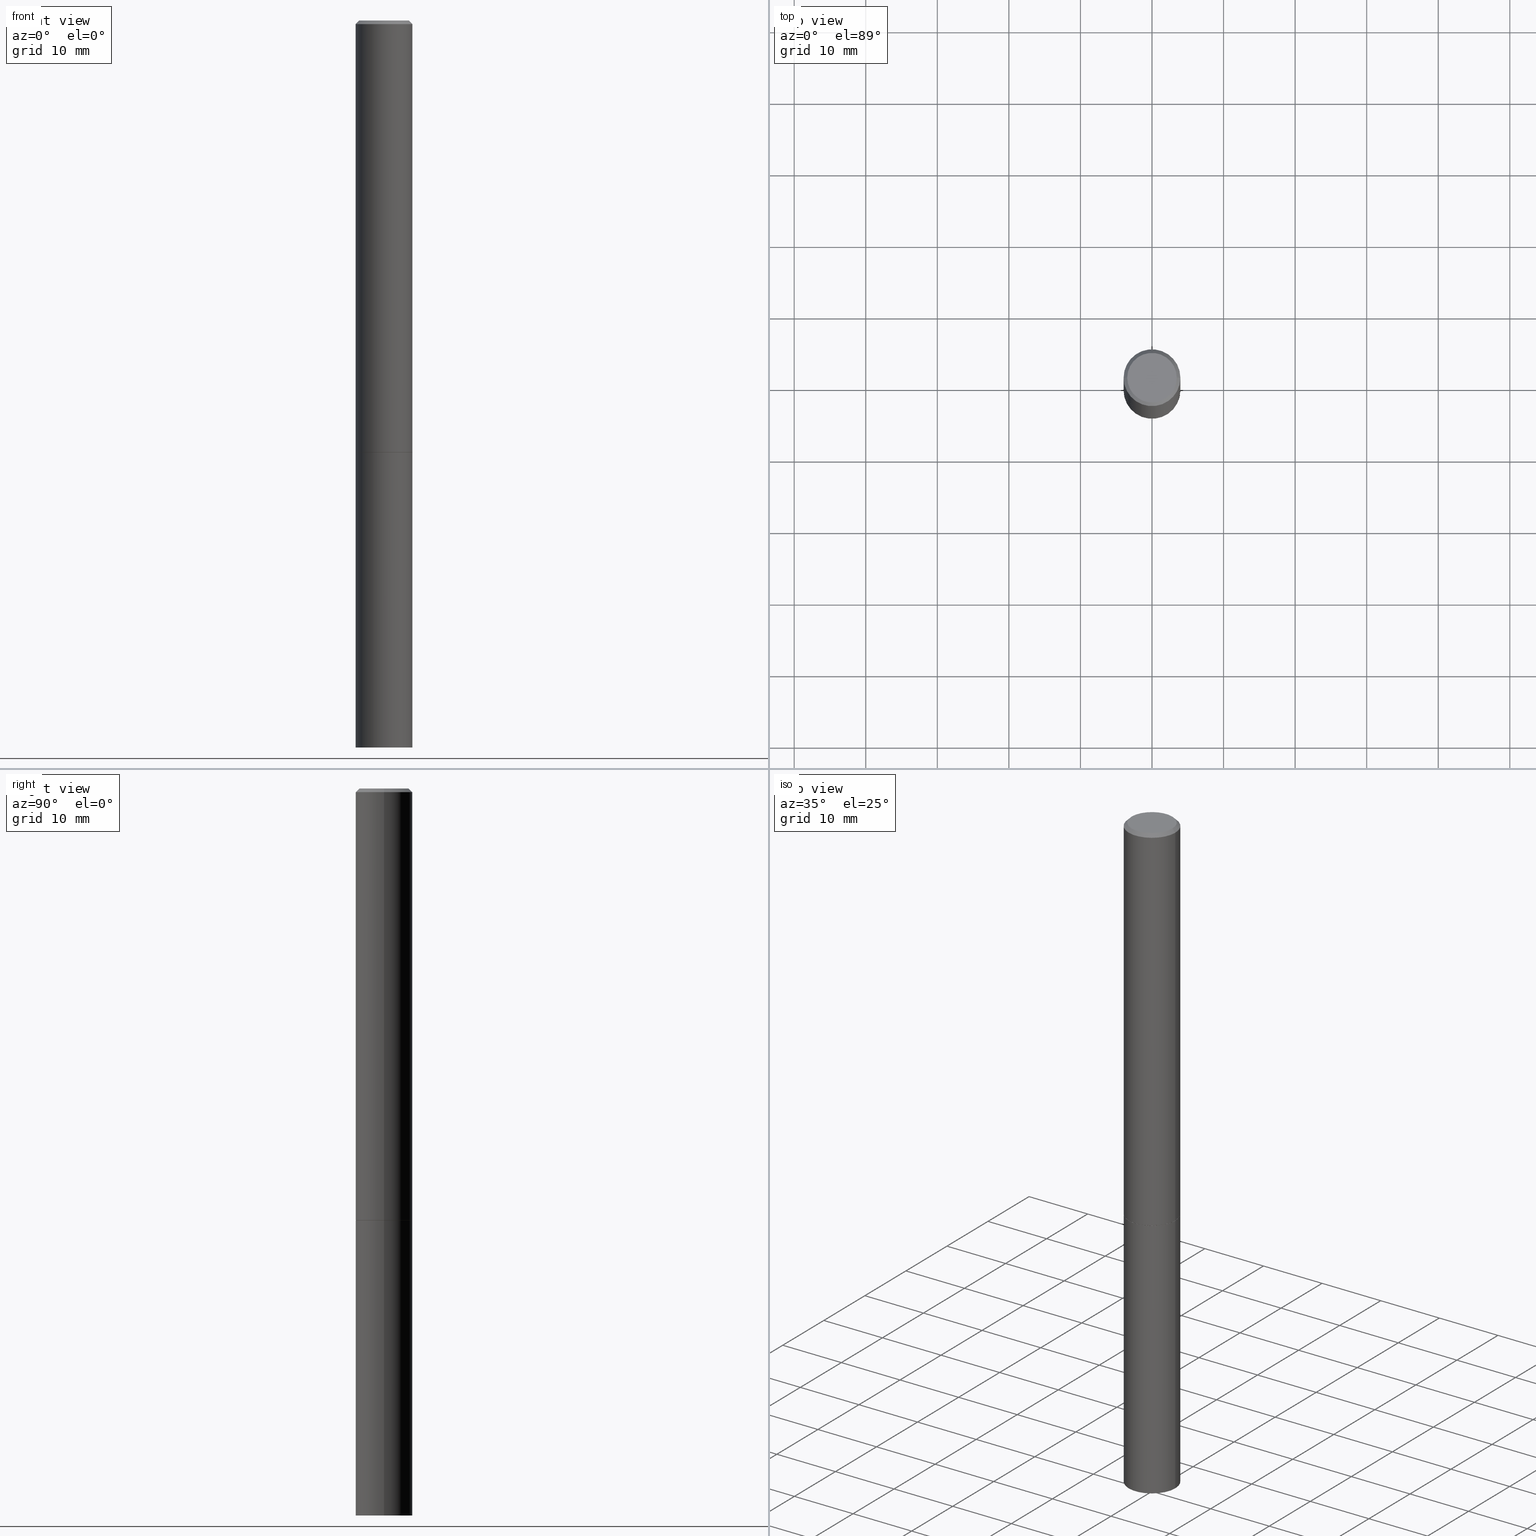
[diagram: canonical four-view strip — front | top / right | iso, engineering-drawing reading convention]
A machine part, canonical four-view strip (front | top / right | iso — engineering-drawing reading convention). The complete STEP part file that produces these views, byte-faithful:
ISO-10303-21;
HEADER;
FILE_DESCRIPTION (( 'STEP AP203' ),
    '1' );
FILE_NAME ('31863.STEP',
    '2023-03-21T20:31:59',
    ( '' ),
    ( '' ),
    'SwSTEP 2.0',
    'SolidWorks 2022',
    '' );
FILE_SCHEMA (( 'CONFIG_CONTROL_DESIGN' ));
ENDSEC;

DATA;
#1 = DIRECTION ( 'NONE',  ( 1.000000000000000000, -6.982962677686267499E-15, 0.000000000000000000 ) ) ;
#2 = DIRECTION ( 'NONE',  ( -1.000000000000000000, 6.982962677686265922E-15, -4.876176775795935793E-29 ) ) ;
#3 = EDGE_LOOP ( 'NONE', ( #351, #296 ) ) ;
#4 = DIRECTION ( 'NONE',  ( 1.000000000000000000, -6.982962677686266711E-15, 4.876176775795936353E-29 ) ) ;
#5 = PLANE ( 'NONE',  #330 ) ;
#6 = DIRECTION ( 'NONE',  ( -2.445468806185136597E-29, 3.491481338843145583E-15, 1.000000000000000000 ) ) ;
#7 = EDGE_LOOP ( 'NONE', ( #229, #310, #166, #265 ) ) ;
#8 = EDGE_CURVE ( 'NONE', #151, #136, #236, .T. ) ;
#9 = DIRECTION ( 'NONE',  ( -2.445468806185136597E-29, 3.491481338843145583E-15, 1.000000000000000000 ) ) ;
#10 = CARTESIAN_POINT ( 'NONE',  ( -0.1562500000000000000, 1.110223024625156540E-15, -7.685836078523291160E-30 ) ) ;
#11 = ORIENTED_EDGE ( 'NONE', *, *, #362, .T. ) ;
#12 = DIRECTION ( 'NONE',  ( 1.000000000000000000, -6.982962677686267499E-15, 0.000000000000000000 ) ) ;
#13 = COORDINATED_UNIVERSAL_TIME_OFFSET ( 5, 0, .BEHIND. ) ;
#14 = CARTESIAN_POINT ( 'NONE',  ( -0.1562500000000000000, -3.069080137970085114E-15, -2.373999999999999666 ) ) ;
#15 = CC_DESIGN_DATE_AND_TIME_ASSIGNMENT ( #321, #199, ( #30 ) ) ;
#16 = EDGE_CURVE ( 'NONE', #86, #286, #88, .T. ) ;
#17 = PERSON_AND_ORGANIZATION ( #21, #123 ) ;
#18 = VECTOR ( 'NONE', #389, 39.37007874015748143 ) ;
#19 = ORIENTED_EDGE ( 'NONE', *, *, #105, .F. ) ;
#20 = APPROVAL_PERSON_ORGANIZATION ( #232, #272, #49 ) ;
#21 = PERSON ( 'UNSPECIFIED', 'UNSPECIFIED', 'UNSPECIFIED', ('UNSPECIFIED'), ('UNSPECIFIED'), ('UNSPECIFIED') ) ;
#22 = CALENDAR_DATE ( 2023, 21, 3 ) ;
#23 = EDGE_LOOP ( 'NONE', ( #196, #295, #176, #19 ) ) ;
#24 = ADVANCED_FACE ( 'NONE', ( #383 ), #213, .T. ) ;
#25 = CARTESIAN_POINT ( 'NONE',  ( 5.807988414689699417E-29, -8.292268179752470118E-15, -2.375000000000000000 ) ) ;
#26 = CALENDAR_DATE ( 2023, 21, 3 ) ;
#27 = ADVANCED_FACE ( 'NONE', ( #200 ), #233, .T. ) ;
#28 = DIRECTION ( 'NONE',  ( -1.000000000000000000, 6.982962677686266711E-15, 0.000000000000000000 ) ) ;
#29 = PLANE ( 'NONE',  #42 ) ;
#30 = PRODUCT_DEFINITION ( 'UNKNOWN', '', #246, #187 ) ;
#31 = FACE_OUTER_BOUND ( 'NONE', #361, .T. ) ;
#32 = DIRECTION ( 'NONE',  ( 2.438088387897960049E-29, -3.491481338843145188E-15, -1.000000000000000000 ) ) ;
#33 = CARTESIAN_POINT ( 'NONE',  ( 0.000000000000000000, 0.000000000000000000, 0.000000000000000000 ) ) ;
#34 = APPROVAL ( #143, 'UNSPECIFIED' ) ;
#35 = CARTESIAN_POINT ( 'NONE',  ( 5.807988414689699417E-29, -8.292268179752470118E-15, -2.375000000000000000 ) ) ;
#36 = CARTESIAN_POINT ( 'NONE',  ( 0.000000000000000000, 0.000000000000000000, 0.000000000000000000 ) ) ;
#37 = DIRECTION ( 'NONE',  ( -2.445468806185136597E-29, 3.491481338843145583E-15, 1.000000000000000000 ) ) ;
#38 = EDGE_CURVE ( 'NONE', #286, #86, #149, .T. ) ;
#39 = DIRECTION ( 'NONE',  ( 1.000000000000000000, -6.982962677686268288E-15, 0.000000000000000000 ) ) ;
#40 = VERTEX_POINT ( 'NONE', #58 ) ;
#41 = DIRECTION ( 'NONE',  ( -0.7071067811865232589, 7.493145998870265808E-15, 0.7071067811865715536 ) ) ;
#42 = AXIS2_PLACEMENT_3D ( 'NONE', #371, #152, #2 ) ;
#43 = AXIS2_PLACEMENT_3D ( 'NONE', #376, #165, #340 ) ;
#44 = FACE_OUTER_BOUND ( 'NONE', #23, .T. ) ;
#45 = PERSON_AND_ORGANIZATION_ROLE ( 'design_supplier' ) ;
#46 = CC_DESIGN_PERSON_AND_ORGANIZATION_ASSIGNMENT ( #54, #360, ( #246 ) ) ;
#47 = APPROVAL_DATE_TIME ( #84, #272 ) ;
#48 = ORIENTED_EDGE ( 'NONE', *, *, #277, .F. ) ;
#49 = APPROVAL_ROLE ( '' ) ;
#50 = CONICAL_SURFACE ( 'NONE', #274, 0.1562499999999996947, 0.7853981633974472798 ) ;
#51 = ORIENTED_EDGE ( 'NONE', *, *, #339, .T. ) ;
#52 = CIRCLE ( 'NONE', #304, 0.1562500000000000000 ) ;
#53 = APPROVAL ( #117, 'UNSPECIFIED' ) ;
#54 = PERSON_AND_ORGANIZATION ( #21, #123 ) ;
#55 = DIRECTION ( 'NONE',  ( -2.445468806185136597E-29, 3.491481338843145583E-15, 1.000000000000000000 ) ) ;
#56 = MECHANICAL_CONTEXT ( 'NONE', #119, 'mechanical' ) ;
#57 = ORIENTED_EDGE ( 'NONE', *, *, #8, .F. ) ;
#58 = CARTESIAN_POINT ( 'NONE',  ( 0.1562499999999996947, -1.141782438928662738E-15, -0.02000000000000003511 ) ) ;
#59 = VECTOR ( 'NONE', #302, 39.37007874015748143 ) ;
#60 = LOCAL_TIME ( 16, 31, 59.00000000000000000, #326 ) ;
#61 = PLANE ( 'NONE',  #197 ) ;
#62 = CARTESIAN_POINT ( 'NONE',  ( -1.520718032702598026E-18, -1.393733460796993625E-14, -3.991811284487025713 ) ) ;
#63 = DIRECTION ( 'NONE',  ( 1.000000000000000000, -6.982962677686262766E-15, 0.000000000000000000 ) ) ;
#64 = AXIS2_PLACEMENT_3D ( 'NONE', #237, #144, #263 ) ;
#65 = CIRCLE ( 'NONE', #83, 0.1362499999999997047 ) ;
#66 = ADVANCED_FACE ( 'NONE', ( #208 ), #280, .F. ) ;
#67 = FACE_OUTER_BOUND ( 'NONE', #3, .T. ) ;
#68 = DIRECTION ( 'NONE',  ( 1.000000000000000000, -6.982962677686266711E-15, 4.876176775795936353E-29 ) ) ;
#69 = VECTOR ( 'NONE', #366, 39.37007874015748854 ) ;
#70 = CARTESIAN_POINT ( 'NONE',  ( -0.1562499999999997224, -1.287483743698410395E-14, -4.000000000000000000 ) ) ;
#71 = DIMENSIONAL_EXPONENTS ( 1.000000000000000000, 0.000000000000000000, 0.000000000000000000, 0.000000000000000000, 0.000000000000000000, 0.000000000000000000, 0.000000000000000000 ) ;
#72 = DIRECTION ( 'NONE',  ( 1.000000000000000000, -6.982962677686266711E-15, 4.876176775795936353E-29 ) ) ;
#73 = ORIENTED_EDGE ( 'NONE', *, *, #390, .T. ) ;
#74 =( GEOMETRIC_REPRESENTATION_CONTEXT ( 3 ) GLOBAL_UNCERTAINTY_ASSIGNED_CONTEXT ( ( #264 ) ) GLOBAL_UNIT_ASSIGNED_CONTEXT ( ( #132, #345, #342 ) ) REPRESENTATION_CONTEXT ( 'NONE', 'WORKASPACE' ) );
#75 = PERSON_AND_ORGANIZATION_ROLE ( 'design_owner' ) ;
#76 = ORIENTED_EDGE ( 'NONE', *, *, #154, .T. ) ;
#77 = APPROVAL_ROLE ( '' ) ;
#78 = ORIENTED_EDGE ( 'NONE', *, *, #16, .T. ) ;
#79 = ORIENTED_EDGE ( 'NONE', *, *, #38, .F. ) ;
#80 = PERSON_AND_ORGANIZATION ( #21, #123 ) ;
#81 = AXIS2_PLACEMENT_3D ( 'NONE', #357, #55, #262 ) ;
#82 = DIRECTION ( 'NONE',  ( -2.445468806185136597E-29, 3.491481338843145583E-15, 1.000000000000000000 ) ) ;
#83 = AXIS2_PLACEMENT_3D ( 'NONE', #36, #9, #68 ) ;
#84 = DATE_AND_TIME ( #115, #267 ) ;
#85 = DIRECTION ( 'NONE',  ( -2.445468806185136877E-29, 3.491481338843145188E-15, 1.000000000000000000 ) ) ;
#86 = VERTEX_POINT ( 'NONE', #14 ) ;
#87 = DIRECTION ( 'NONE',  ( 2.445468806185136597E-29, -3.491481338843145583E-15, -1.000000000000000000 ) ) ;
#88 = CIRCLE ( 'NONE', #64, 0.1562500000000000000 ) ;
#89 = CC_DESIGN_SECURITY_CLASSIFICATION ( #150, ( #246 ) ) ;
#90 = CARTESIAN_POINT ( 'NONE',  ( 5.807988414689699417E-29, -8.292268179752470118E-15, -2.375000000000000000 ) ) ;
#91 = LINE ( 'NONE', #211, #18 ) ;
#92 = EDGE_CURVE ( 'NONE', #269, #377, #354, .T. ) ;
#93 = CARTESIAN_POINT ( 'NONE',  ( 0.1552499999999999991, -9.376373135463264066E-15, -2.375000000000000000 ) ) ;
#94 = ADVANCED_FACE ( 'NONE', ( #31 ), #270, .T. ) ;
#95 = AXIS2_PLACEMENT_3D ( 'NONE', #278, #273, #1 ) ;
#96 = CIRCLE ( 'NONE', #129, 0.1362499999999997047 ) ;
#97 = FACE_OUTER_BOUND ( 'NONE', #7, .T. ) ;
#98 = ADVANCED_FACE ( 'NONE', ( #128 ), #358, .F. ) ;
#99 = DIRECTION ( 'NONE',  ( 1.000000000000000000, -6.982962677686262766E-15, 0.000000000000000000 ) ) ;
#100 = CARTESIAN_POINT ( 'NONE',  ( -0.1552499999999999991, -7.189150582484915374E-15, -2.375000000000000000 ) ) ;
#101 = VERTEX_POINT ( 'NONE', #300 ) ;
#102 = VECTOR ( 'NONE', #85, 39.37007874015748143 ) ;
#103 = LINE ( 'NONE', #347, #252 ) ;
#104 = CARTESIAN_POINT ( 'NONE',  ( 0.000000000000000000, 0.000000000000000000, 0.000000000000000000 ) ) ;
#105 = EDGE_CURVE ( 'NONE', #286, #40, #91, .T. ) ;
#106 = APPLICATION_CONTEXT ( 'configuration controlled 3d designs of mechanical parts and assemblies' ) ;
#107 = CARTESIAN_POINT ( 'NONE',  ( 0.000000000000000000, 0.000000000000000000, 0.000000000000000000 ) ) ;
#108 = ORIENTED_EDGE ( 'NONE', *, *, #362, .F. ) ;
#109 = DIRECTION ( 'NONE',  ( 1.000000000000000000, 0.000000000000000000, 0.000000000000000000 ) ) ;
#110 = VERTEX_POINT ( 'NONE', #186 ) ;
#111 = ADVANCED_FACE ( 'NONE', ( #279 ), #29, .F. ) ;
#112 = APPROVAL_DATE_TIME ( #261, #53 ) ;
#113 = DIRECTION ( 'NONE',  ( -2.445468806185136597E-29, 3.491481338843145583E-15, 1.000000000000000000 ) ) ;
#114 = ORIENTED_EDGE ( 'NONE', *, *, #390, .F. ) ;
#115 = CALENDAR_DATE ( 2023, 21, 3 ) ;
#116 = ORIENTED_EDGE ( 'NONE', *, *, #277, .T. ) ;
#117 = APPROVAL_STATUS ( 'not_yet_approved' ) ;
#118 = ORIENTED_EDGE ( 'NONE', *, *, #294, .F. ) ;
#119 = APPLICATION_CONTEXT ( 'configuration controlled 3d designs of mechanical parts and assemblies' ) ;
#120 = LINE ( 'NONE', #276, #266 ) ;
#121 = DIRECTION ( 'NONE',  ( -2.445468806185136597E-29, 3.491481338843145583E-15, 1.000000000000000000 ) ) ;
#122 = AXIS2_PLACEMENT_3D ( 'NONE', #368, #338, #337 ) ;
#123 = ORGANIZATION ( 'UNSPECIFIED', 'UNSPECIFIED', '' ) ;
#124 = EDGE_CURVE ( 'NONE', #101, #40, #185, .T. ) ;
#125 = DIRECTION ( 'NONE',  ( -0.7071067811865467956, 2.468850131082249172E-15, -0.7071067811865482389 ) ) ;
#126 = CARTESIAN_POINT ( 'NONE',  ( 9.781875224740546387E-29, -1.396592535537258233E-14, -4.000000000000000000 ) ) ;
#127 = MANIFOLD_SOLID_BREP ( 'Body-Move/Copy2[2]', #227 ) ;
#128 = FACE_OUTER_BOUND ( 'NONE', #382, .T. ) ;
#129 = AXIS2_PLACEMENT_3D ( 'NONE', #104, #37, #72 ) ;
#130 = CARTESIAN_POINT ( 'NONE',  ( 5.807988414689699417E-29, -8.292268179752470118E-15, -2.375000000000000000 ) ) ;
#131 = MANIFOLD_SOLID_BREP ( 'Body-Move/Copy2[1]', #234 ) ;
#132 =( CONVERSION_BASED_UNIT ( 'INCH', #372 ) LENGTH_UNIT ( ) NAMED_UNIT ( #71 ) );
#133 = AXIS2_PLACEMENT_3D ( 'NONE', #33, #121, #332 ) ;
#134 = CARTESIAN_POINT ( 'NONE',  ( -0.1562500000000000000, -1.001887374293736968E-14, -2.375000000000000000 ) ) ;
#135 = ADVANCED_FACE ( 'NONE', ( #153 ), #61, .F. ) ;
#136 = VERTEX_POINT ( 'NONE', #183 ) ;
#137 = CARTESIAN_POINT ( 'NONE',  ( 0.1562500000000000000, -9.379864616802105495E-15, -2.373999999999999666 ) ) ;
#138 = ORIENTED_EDGE ( 'NONE', *, *, #167, .T. ) ;
#139 = EDGE_LOOP ( 'NONE', ( #224, #180, #114, #57 ) ) ;
#140 = CONICAL_SURFACE ( 'NONE', #203, 0.1552499999999999991, 0.7853981633974141952 ) ;
#141 = CALENDAR_DATE ( 2023, 21, 3 ) ;
#142 = ORIENTED_EDGE ( 'NONE', *, *, #294, .T. ) ;
#143 = APPROVAL_STATUS ( 'not_yet_approved' ) ;
#144 = DIRECTION ( 'NONE',  ( -2.445468806185136597E-29, 3.491481338843145583E-15, 1.000000000000000000 ) ) ;
#145 = ADVANCED_BREP_SHAPE_REPRESENTATION ( '31863', ( #131, #127, #221 ), #74 ) ;
#146 = DIRECTION ( 'NONE',  ( 0.000000000000000000, 0.000000000000000000, 1.000000000000000000 ) ) ;
#147 = EDGE_LOOP ( 'NONE', ( #255, #356, #315, #48 ) ) ;
#148 = DATE_TIME_ROLE ( 'classification_date' ) ;
#149 = CIRCLE ( 'NONE', #341, 0.1562500000000000000 ) ;
#150 = SECURITY_CLASSIFICATION ( '', '', #291 ) ;
#151 = VERTEX_POINT ( 'NONE', #216 ) ;
#152 = DIRECTION ( 'NONE',  ( 2.438088387897960049E-29, -3.491481338843145188E-15, -1.000000000000000000 ) ) ;
#153 = FACE_OUTER_BOUND ( 'NONE', #292, .T. ) ;
#154 = EDGE_CURVE ( 'NONE', #202, #329, #120, .T. ) ;
#155 = CARTESIAN_POINT ( 'NONE',  ( 9.514286648347515911E-16, 0.1362499999999997047, -4.757143324173775705E-16 ) ) ;
#156 = CARTESIAN_POINT ( 'NONE',  ( 0.1562499999999996947, -1.141782438928662738E-15, -0.02000000000000003511 ) ) ;
#157 = DIRECTION ( 'NONE',  ( 1.000000000000000000, -6.982962677686268288E-15, 0.000000000000000000 ) ) ;
#158 = FACE_OUTER_BOUND ( 'NONE', #380, .T. ) ;
#159 = AXIS2_PLACEMENT_3D ( 'NONE', #335, #242, #4 ) ;
#160 = VECTOR ( 'NONE', #282, 39.37007874015748143 ) ;
#161 = LINE ( 'NONE', #10, #160 ) ;
#162 = LINE ( 'NONE', #283, #343 ) ;
#163 = ORIENTED_EDGE ( 'NONE', *, *, #256, .F. ) ;
#164 = EDGE_CURVE ( 'NONE', #40, #329, #303, .T. ) ;
#165 = DIRECTION ( 'NONE',  ( -2.445468806185136597E-29, 3.491481338843145583E-15, 1.000000000000000000 ) ) ;
#166 = ORIENTED_EDGE ( 'NONE', *, *, #164, .T. ) ;
#167 = EDGE_CURVE ( 'NONE', #314, #286, #241, .T. ) ;
#168 = CARTESIAN_POINT ( 'NONE',  ( 4.890937612370281041E-31, -6.982962677686302702E-17, -0.02000000000000003511 ) ) ;
#169 = ORIENTED_EDGE ( 'NONE', *, *, #105, .T. ) ;
#170 = DATE_AND_TIME ( #22, #240 ) ;
#171 = ADVANCED_FACE ( 'NONE', ( #67 ), #5, .F. ) ;
#172 = PERSON_AND_ORGANIZATION ( #21, #123 ) ;
#173 = CARTESIAN_POINT ( 'NONE',  ( 0.1562500000000000000, -1.091087918388479174E-15, 7.619026212181150377E-30 ) ) ;
#174 = AXIS2_PLACEMENT_3D ( 'NONE', #35, #188, #157 ) ;
#175 = PERSON_AND_ORGANIZATION_ROLE ( 'classification_officer' ) ;
#176 = ORIENTED_EDGE ( 'NONE', *, *, #164, .F. ) ;
#177 = DIRECTION ( 'NONE',  ( 1.000000000000000000, -6.982962677686262766E-15, 0.000000000000000000 ) ) ;
#178 = ADVANCED_FACE ( 'NONE', ( #333 ), #239, .T. ) ;
#179 = PERSON_AND_ORGANIZATION ( #21, #123 ) ;
#180 = ORIENTED_EDGE ( 'NONE', *, *, #307, .T. ) ;
#181 = APPROVAL_PERSON_ORGANIZATION ( #268, #53, #349 ) ;
#182 = CARTESIAN_POINT ( 'NONE',  ( 4.890937612370281041E-31, -6.982962677686302702E-17, -0.02000000000000003511 ) ) ;
#183 = CARTESIAN_POINT ( 'NONE',  ( 0.1562500000000000000, -9.383356098140948502E-15, -2.375000000000000000 ) ) ;
#184 = EDGE_CURVE ( 'NONE', #377, #151, #244, .T. ) ;
#185 = LINE ( 'NONE', #156, #59 ) ;
#186 = CARTESIAN_POINT ( 'NONE',  ( -0.1552499999999999991, -7.183852128136692972E-15, -2.375000000000000000 ) ) ;
#187 = DESIGN_CONTEXT ( 'detailed design', #106, 'design' ) ;
#188 = DIRECTION ( 'NONE',  ( -2.445468806185136597E-29, 3.491481338843145583E-15, 1.000000000000000000 ) ) ;
#189 = ADVANCED_FACE ( 'NONE', ( #243 ), #293, .T. ) ;
#190 = CARTESIAN_POINT ( 'NONE',  ( 5.807988414689699417E-29, -8.292268179752470118E-15, -2.375000000000000000 ) ) ;
#191 = DIRECTION ( 'NONE',  ( -1.000000000000000000, 6.982962677686267499E-15, 0.000000000000000000 ) ) ;
#192 = CARTESIAN_POINT ( 'NONE',  ( 5.807988414689699417E-29, -8.292268179752470118E-15, -2.375000000000000000 ) ) ;
#193 = EDGE_LOOP ( 'NONE', ( #163, #325, #138, #374 ) ) ;
#194 = EDGE_CURVE ( 'NONE', #110, #314, #259, .T. ) ;
#195 = LINE ( 'NONE', #100, #370 ) ;
#196 = ORIENTED_EDGE ( 'NONE', *, *, #38, .T. ) ;
#197 = AXIS2_PLACEMENT_3D ( 'NONE', #155, #32, #212 ) ;
#198 = CC_DESIGN_APPROVAL ( #53, ( #150 ) ) ;
#199 = DATE_TIME_ROLE ( 'creation_date' ) ;
#200 = FACE_OUTER_BOUND ( 'NONE', #139, .T. ) ;
#201 = PERSON_AND_ORGANIZATION_ROLE ( 'creator' ) ;
#202 = VERTEX_POINT ( 'NONE', #364 ) ;
#203 = AXIS2_PLACEMENT_3D ( 'NONE', #190, #373, #39 ) ;
#204 = COORDINATED_UNIVERSAL_TIME_OFFSET ( 5, 0, .BEHIND. ) ;
#205 = ORIENTED_EDGE ( 'NONE', *, *, #271, .F. ) ;
#206 = ADVANCED_FACE ( 'NONE', ( #97 ), #50, .T. ) ;
#207 = COORDINATED_UNIVERSAL_TIME_OFFSET ( 5, 0, .BEHIND. ) ;
#208 = FACE_OUTER_BOUND ( 'NONE', #231, .T. ) ;
#209 = ORIENTED_EDGE ( 'NONE', *, *, #256, .T. ) ;
#210 = DIRECTION ( 'NONE',  ( -1.000000000000000000, 6.982962677686266711E-15, 0.000000000000000000 ) ) ;
#211 = CARTESIAN_POINT ( 'NONE',  ( 0.1562499999999998612, -1.091087918388478187E-15, 7.619026212181143371E-30 ) ) ;
#212 = DIRECTION ( 'NONE',  ( -1.000000000000000000, 6.982962677686265922E-15, -4.876176775795935793E-29 ) ) ;
#213 = CONICAL_SURFACE ( 'NONE', #350, 0.1552499999999999991, 0.7853981633974141952 ) ;
#214 = DIRECTION ( 'NONE',  ( -2.438088387897960049E-29, 3.491481338843145188E-15, 1.000000000000000000 ) ) ;
#215 = CC_DESIGN_PERSON_AND_ORGANIZATION_ASSIGNMENT ( #80, #75, ( #344 ) ) ;
#216 = CARTESIAN_POINT ( 'NONE',  ( 0.1562499999999997224, -1.503787816752438098E-14, -4.000000000000000000 ) ) ;
#217 = DIRECTION ( 'NONE',  ( -2.445468806185136597E-29, 3.491481338843145583E-15, 1.000000000000000000 ) ) ;
#218 = EDGE_CURVE ( 'NONE', #329, #40, #220, .T. ) ;
#219 = ORIENTED_EDGE ( 'NONE', *, *, #218, .F. ) ;
#220 = CIRCLE ( 'NONE', #323, 0.1562499999999996947 ) ;
#221 = AXIS2_PLACEMENT_3D ( 'NONE', #353, #146, #109 ) ;
#222 = DIRECTION ( 'NONE',  ( 1.000000000000000000, -6.982962677686266711E-15, 4.876176775795936353E-29 ) ) ;
#223 = DIRECTION ( 'NONE',  ( 1.000000000000000000, -6.982962677686268288E-15, 0.000000000000000000 ) ) ;
#224 = ORIENTED_EDGE ( 'NONE', *, *, #288, .T. ) ;
#225 = DIRECTION ( 'NONE',  ( -2.445468806185136597E-29, 3.491481338843145583E-15, 1.000000000000000000 ) ) ;
#226 = ORIENTED_EDGE ( 'NONE', *, *, #92, .F. ) ;
#227 = CLOSED_SHELL ( 'NONE', ( #238, #328, #206, #189, #94, #24, #171, #135 ) ) ;
#228 = LOCAL_TIME ( 16, 31, 59.00000000000000000, #13 ) ;
#229 = ORIENTED_EDGE ( 'NONE', *, *, #346, .F. ) ;
#230 = SHAPE_DEFINITION_REPRESENTATION ( #318, #145 ) ;
#231 = EDGE_LOOP ( 'NONE', ( #226, #142, #388 ) ) ;
#232 = PERSON_AND_ORGANIZATION ( #21, #123 ) ;
#233 = CYLINDRICAL_SURFACE ( 'NONE', #81, 0.1562500000000000000 ) ;
#234 = CLOSED_SHELL ( 'NONE', ( #27, #66, #98, #178, #111 ) ) ;
#235 = APPLICATION_PROTOCOL_DEFINITION ( 'international standard', 'config_control_design', 1994, #106 ) ;
#236 = LINE ( 'NONE', #173, #102 ) ;
#237 = CARTESIAN_POINT ( 'NONE',  ( 5.805542945883513814E-29, -8.288776698413627111E-15, -2.373999999999999666 ) ) ;
#238 = ADVANCED_FACE ( 'NONE', ( #158 ), #140, .T. ) ;
#239 = CYLINDRICAL_SURFACE ( 'NONE', #159, 0.1562500000000000000 ) ;
#240 = LOCAL_TIME ( 16, 31, 59.00000000000000000, #207 ) ;
#241 = LINE ( 'NONE', #93, #69 ) ;
#242 = DIRECTION ( 'NONE',  ( -2.445468806185136597E-29, 3.491481338843145583E-15, 1.000000000000000000 ) ) ;
#243 = FACE_OUTER_BOUND ( 'NONE', #336, .T. ) ;
#244 = CIRCLE ( 'NONE', #379, 0.1562500000000000000 ) ;
#245 = DIRECTION ( 'NONE',  ( 2.445468806185136597E-29, -3.491481338843145583E-15, -1.000000000000000000 ) ) ;
#246 = PRODUCT_DEFINITION_FORMATION_WITH_SPECIFIED_SOURCE ( 'ANY', '', #344, .NOT_KNOWN. ) ;
#247 = DIRECTION ( 'NONE',  ( 1.000000000000000000, -6.982962677686262766E-15, 0.000000000000000000 ) ) ;
#248 = CC_DESIGN_PERSON_AND_ORGANIZATION_ASSIGNMENT ( #179, #201, ( #30 ) ) ;
#249 = ORIENTED_EDGE ( 'NONE', *, *, #288, .F. ) ;
#250 = CARTESIAN_POINT ( 'NONE',  ( 9.760788064664209118E-29, -1.393885532600273718E-14, -3.991811284487025713 ) ) ;
#251 = ORIENTED_EDGE ( 'NONE', *, *, #167, .F. ) ;
#252 = VECTOR ( 'NONE', #284, 39.37007874015748854 ) ;
#253 = DIRECTION ( 'NONE',  ( -2.445468806185136597E-29, 3.491481338843145583E-15, 1.000000000000000000 ) ) ;
#254 = CYLINDRICAL_SURFACE ( 'NONE', #359, 0.1562499999999998612 ) ;
#255 = ORIENTED_EDGE ( 'NONE', *, *, #307, .F. ) ;
#256 = EDGE_CURVE ( 'NONE', #110, #86, #195, .T. ) ;
#257 = APPROVAL_DATE_TIME ( #170, #34 ) ;
#258 = ORIENTED_EDGE ( 'NONE', *, *, #92, .T. ) ;
#259 = CIRCLE ( 'NONE', #174, 0.1552499999999999991 ) ;
#260 = CC_DESIGN_APPROVAL ( #34, ( #30 ) ) ;
#261 = DATE_AND_TIME ( #141, #228 ) ;
#262 = DIRECTION ( 'NONE',  ( 1.000000000000000000, -6.982962677686266711E-15, 4.876176775795936353E-29 ) ) ;
#263 = DIRECTION ( 'NONE',  ( 1.000000000000000000, -6.982962677686262766E-15, 0.000000000000000000 ) ) ;
#264 = UNCERTAINTY_MEASURE_WITH_UNIT (LENGTH_MEASURE( 1.000000000000000082E-05 ), #132, 'distance_accuracy_value', 'NONE');
#265 = ORIENTED_EDGE ( 'NONE', *, *, #154, .F. ) ;
#266 = VECTOR ( 'NONE', #125, 39.37007874015748143 ) ;
#267 = LOCAL_TIME ( 16, 31, 59.00000000000000000, #324 ) ;
#268 = PERSON_AND_ORGANIZATION ( #21, #123 ) ;
#269 = VERTEX_POINT ( 'NONE', #250 ) ;
#270 = CYLINDRICAL_SURFACE ( 'NONE', #133, 0.1562499999999998612 ) ;
#271 = EDGE_CURVE ( 'NONE', #86, #329, #162, .T. ) ;
#272 = APPROVAL ( #319, 'UNSPECIFIED' ) ;
#273 = DIRECTION ( 'NONE',  ( -2.445468806185136597E-29, 3.491481338843145583E-15, 1.000000000000000000 ) ) ;
#274 = AXIS2_PLACEMENT_3D ( 'NONE', #182, #87, #191 ) ;
#275 = AXIS2_PLACEMENT_3D ( 'NONE', #130, #225, #223 ) ;
#276 = CARTESIAN_POINT ( 'NONE',  ( -0.1562499999999996947, 1.021258291611614100E-15, -0.02000000000000003511 ) ) ;
#277 = EDGE_CURVE ( 'NONE', #327, #136, #331, .T. ) ;
#278 = CARTESIAN_POINT ( 'NONE',  ( 4.890937612370281041E-31, -6.982962677686302702E-17, -0.02000000000000003511 ) ) ;
#279 = FACE_OUTER_BOUND ( 'NONE', #363, .T. ) ;
#280 = CONICAL_SURFACE ( 'NONE', #369, 751.2258538476485228, 1.518436449235072372 ) ;
#281 = CARTESIAN_POINT ( 'NONE',  ( 0.1552499999999999991, -9.376373135463264066E-15, -2.375000000000000000 ) ) ;
#282 = DIRECTION ( 'NONE',  ( -2.445468806185136877E-29, 3.491481338843145188E-15, 1.000000000000000000 ) ) ;
#283 = CARTESIAN_POINT ( 'NONE',  ( -0.1562499999999998612, 1.110223024625155554E-15, -7.685836078523284153E-30 ) ) ;
#284 = DIRECTION ( 'NONE',  ( 0.9986295347545742773, -7.033825938272001856E-15, -0.05233595624293820026 ) ) ;
#285 = VECTOR ( 'NONE', #367, 39.37007874015748854 ) ;
#286 = VERTEX_POINT ( 'NONE', #137 ) ;
#287 = CARTESIAN_POINT ( 'NONE',  ( 5.807988414689699417E-29, -8.292268179752470118E-15, -2.375000000000000000 ) ) ;
#288 = EDGE_CURVE ( 'NONE', #151, #377, #309, .T. ) ;
#289 = DATE_AND_TIME ( #317, #60 ) ;
#290 = DIRECTION ( 'NONE',  ( 2.445468806185136597E-29, -3.491481338843145583E-15, -1.000000000000000000 ) ) ;
#291 = SECURITY_CLASSIFICATION_LEVEL ( 'unclassified' ) ;
#292 = EDGE_LOOP ( 'NONE', ( #11, #348 ) ) ;
#293 = CONICAL_SURFACE ( 'NONE', #122, 0.1562499999999996947, 0.7853981633974472798 ) ;
#294 = EDGE_CURVE ( 'NONE', #269, #151, #103, .T. ) ;
#295 = ORIENTED_EDGE ( 'NONE', *, *, #271, .T. ) ;
#296 = ORIENTED_EDGE ( 'NONE', *, *, #194, .F. ) ;
#297 = PERSON_AND_ORGANIZATION ( #21, #123 ) ;
#298 = CARTESIAN_POINT ( 'NONE',  ( 1.060401494324985939E-27, -1.513972298380150215E-13, -43.36189002464450226 ) ) ;
#299 = APPROVAL_PERSON_ORGANIZATION ( #297, #34, #77 ) ;
#300 = CARTESIAN_POINT ( 'NONE',  ( 0.1362499999999997047, -1.038262645562515955E-15, 6.957025900226681062E-30 ) ) ;
#301 = CARTESIAN_POINT ( 'NONE',  ( 1.060401494324985939E-27, -1.513972298380150215E-13, -43.36189002464450226 ) ) ;
#302 = DIRECTION ( 'NONE',  ( 0.7071067811865467956, -7.319954787623254468E-15, -0.7071067811865482389 ) ) ;
#303 = CIRCLE ( 'NONE', #95, 0.1562499999999996947 ) ;
#304 = AXIS2_PLACEMENT_3D ( 'NONE', #192, #6, #247 ) ;
#305 = DIRECTION ( 'NONE',  ( 1.000000000000000000, -6.982962677686265922E-15, 4.876176775795935793E-29 ) ) ;
#306 = DIRECTION ( 'NONE',  ( -2.445468806185136597E-29, 3.491481338843145583E-15, 1.000000000000000000 ) ) ;
#307 = EDGE_CURVE ( 'NONE', #377, #327, #161, .T. ) ;
#308 = DIRECTION ( 'NONE',  ( -2.445468806185136877E-29, 3.491481338843145188E-15, 1.000000000000000000 ) ) ;
#309 = CIRCLE ( 'NONE', #43, 0.1562500000000000000 ) ;
#310 = ORIENTED_EDGE ( 'NONE', *, *, #124, .T. ) ;
#311 =( LENGTH_UNIT ( ) NAMED_UNIT ( * ) SI_UNIT ( $, .METRE. ) );
#312 = ORIENTED_EDGE ( 'NONE', *, *, #124, .F. ) ;
#313 = DIRECTION ( 'NONE',  ( -2.445468806185136597E-29, 3.491481338843145583E-15, 1.000000000000000000 ) ) ;
#314 = VERTEX_POINT ( 'NONE', #281 ) ;
#315 = ORIENTED_EDGE ( 'NONE', *, *, #8, .T. ) ;
#316 = LOCAL_TIME ( 16, 31, 59.00000000000000000, #204 ) ;
#317 = CALENDAR_DATE ( 2023, 21, 3 ) ;
#318 = PRODUCT_DEFINITION_SHAPE ( 'NONE', 'NONE',  #30 ) ;
#319 = APPROVAL_STATUS ( 'not_yet_approved' ) ;
#320 = CARTESIAN_POINT ( 'NONE',  ( 5.805542945883513814E-29, -8.288776698413627111E-15, -2.373999999999999666 ) ) ;
#321 = DATE_AND_TIME ( #26, #316 ) ;
#322 = DIRECTION ( 'NONE',  ( 1.000000000000000000, -6.982962677686268288E-15, 0.000000000000000000 ) ) ;
#323 = AXIS2_PLACEMENT_3D ( 'NONE', #168, #217, #12 ) ;
#324 = COORDINATED_UNIVERSAL_TIME_OFFSET ( 5, 0, .BEHIND. ) ;
#325 = ORIENTED_EDGE ( 'NONE', *, *, #194, .T. ) ;
#326 = COORDINATED_UNIVERSAL_TIME_OFFSET ( 5, 0, .BEHIND. ) ;
#327 = VERTEX_POINT ( 'NONE', #134 ) ;
#328 = ADVANCED_FACE ( 'NONE', ( #44 ), #254, .T. ) ;
#329 = VERTEX_POINT ( 'NONE', #375 ) ;
#330 = AXIS2_PLACEMENT_3D ( 'NONE', #90, #214, #305 ) ;
#331 = CIRCLE ( 'NONE', #365, 0.1562500000000000000 ) ;
#332 = DIRECTION ( 'NONE',  ( 1.000000000000000000, -6.982962677686266711E-15, 4.876176775795936353E-29 ) ) ;
#333 = FACE_OUTER_BOUND ( 'NONE', #147, .T. ) ;
#334 = CC_DESIGN_PERSON_AND_ORGANIZATION_ASSIGNMENT ( #172, #45, ( #246 ) ) ;
#335 = CARTESIAN_POINT ( 'NONE',  ( 0.000000000000000000, 0.000000000000000000, 0.000000000000000000 ) ) ;
#336 = EDGE_LOOP ( 'NONE', ( #312, #108, #76, #385 ) ) ;
#337 = DIRECTION ( 'NONE',  ( -1.000000000000000000, 6.982962677686267499E-15, 0.000000000000000000 ) ) ;
#338 = DIRECTION ( 'NONE',  ( 2.445468806185136597E-29, -3.491481338843145583E-15, -1.000000000000000000 ) ) ;
#339 = EDGE_CURVE ( 'NONE', #314, #110, #381, .T. ) ;
#340 = DIRECTION ( 'NONE',  ( 1.000000000000000000, -6.982962677686262766E-15, 0.000000000000000000 ) ) ;
#341 = AXIS2_PLACEMENT_3D ( 'NONE', #320, #113, #177 ) ;
#342 =( NAMED_UNIT ( * ) SI_UNIT ( $, .STERADIAN. ) SOLID_ANGLE_UNIT ( ) );
#343 = VECTOR ( 'NONE', #308, 39.37007874015748143 ) ;
#344 = PRODUCT ( '31863', '31863', '', ( #56 ) ) ;
#345 =( NAMED_UNIT ( * ) PLANE_ANGLE_UNIT ( ) SI_UNIT ( $, .RADIAN. ) );
#346 = EDGE_CURVE ( 'NONE', #101, #202, #65, .T. ) ;
#347 = CARTESIAN_POINT ( 'NONE',  ( 1.520718032897834937E-18, -1.393733460796993625E-14, -3.991811284487025713 ) ) ;
#348 = ORIENTED_EDGE ( 'NONE', *, *, #346, .T. ) ;
#349 = APPROVAL_ROLE ( '' ) ;
#350 = AXIS2_PLACEMENT_3D ( 'NONE', #25, #82, #322 ) ;
#351 = ORIENTED_EDGE ( 'NONE', *, *, #339, .F. ) ;
#352 = CC_DESIGN_PERSON_AND_ORGANIZATION_ASSIGNMENT ( #17, #175, ( #150 ) ) ;
#353 = CARTESIAN_POINT ( 'NONE',  ( 0.000000000000000000, 0.000000000000000000, 0.000000000000000000 ) ) ;
#354 = LINE ( 'NONE', #62, #285 ) ;
#355 = APPLICATION_PROTOCOL_DEFINITION ( 'international standard', 'config_control_design', 1994, #119 ) ;
#356 = ORIENTED_EDGE ( 'NONE', *, *, #184, .T. ) ;
#357 = CARTESIAN_POINT ( 'NONE',  ( 0.000000000000000000, 0.000000000000000000, 0.000000000000000000 ) ) ;
#358 = CONICAL_SURFACE ( 'NONE', #386, 751.2258538476485228, 1.518436449235072372 ) ;
#359 = AXIS2_PLACEMENT_3D ( 'NONE', #107, #253, #222 ) ;
#360 = PERSON_AND_ORGANIZATION_ROLE ( 'creator' ) ;
#361 = EDGE_LOOP ( 'NONE', ( #205, #78, #169, #219 ) ) ;
#362 = EDGE_CURVE ( 'NONE', #202, #101, #96, .T. ) ;
#363 = EDGE_LOOP ( 'NONE', ( #73, #116 ) ) ;
#364 = CARTESIAN_POINT ( 'NONE',  ( -0.1362499999999997047, 9.863434782231828457E-16, -6.775751096333124469E-30 ) ) ;
#365 = AXIS2_PLACEMENT_3D ( 'NONE', #287, #313, #99 ) ;
#366 = DIRECTION ( 'NONE',  ( 0.7071067811865232589, -2.468850131082003836E-15, 0.7071067811865715536 ) ) ;
#367 = DIRECTION ( 'NONE',  ( -0.9986295347545742773, 6.790662755453662155E-15, -0.05233595624293820026 ) ) ;
#368 = CARTESIAN_POINT ( 'NONE',  ( 4.890937612370281041E-31, -6.982962677686302702E-17, -0.02000000000000003511 ) ) ;
#369 = AXIS2_PLACEMENT_3D ( 'NONE', #298, #290, #28 ) ;
#370 = VECTOR ( 'NONE', #41, 39.37007874015748854 ) ;
#371 = CARTESIAN_POINT ( 'NONE',  ( 1.091087918388537155E-15, 0.1562499999999917011, -2.375000000000000444 ) ) ;
#372 = LENGTH_MEASURE_WITH_UNIT ( LENGTH_MEASURE( 0.02539999999999999897 ), #311 );
#373 = DIRECTION ( 'NONE',  ( -2.445468806185136597E-29, 3.491481338843145583E-15, 1.000000000000000000 ) ) ;
#374 = ORIENTED_EDGE ( 'NONE', *, *, #16, .F. ) ;
#375 = CARTESIAN_POINT ( 'NONE',  ( -0.1562499999999996947, 1.021258291611614100E-15, -0.02000000000000003511 ) ) ;
#376 = CARTESIAN_POINT ( 'NONE',  ( 9.781875224740546387E-29, -1.396592535537258233E-14, -4.000000000000000000 ) ) ;
#377 = VERTEX_POINT ( 'NONE', #70 ) ;
#378 = CC_DESIGN_DATE_AND_TIME_ASSIGNMENT ( #289, #148, ( #150 ) ) ;
#379 = AXIS2_PLACEMENT_3D ( 'NONE', #126, #306, #63 ) ;
#380 = EDGE_LOOP ( 'NONE', ( #51, #209, #79, #251 ) ) ;
#381 = CIRCLE ( 'NONE', #275, 0.1552499999999999991 ) ;
#382 = EDGE_LOOP ( 'NONE', ( #118, #258, #249 ) ) ;
#383 = FACE_OUTER_BOUND ( 'NONE', #193, .T. ) ;
#384 = PRODUCT_RELATED_PRODUCT_CATEGORY ( 'detail', '', ( #344 ) ) ;
#385 = ORIENTED_EDGE ( 'NONE', *, *, #218, .T. ) ;
#386 = AXIS2_PLACEMENT_3D ( 'NONE', #301, #245, #210 ) ;
#387 = CC_DESIGN_APPROVAL ( #272, ( #246 ) ) ;
#388 = ORIENTED_EDGE ( 'NONE', *, *, #184, .F. ) ;
#389 = DIRECTION ( 'NONE',  ( -2.445468806185136877E-29, 3.491481338843145188E-15, 1.000000000000000000 ) ) ;
#390 = EDGE_CURVE ( 'NONE', #136, #327, #52, .T. ) ;
ENDSEC;
END-ISO-10303-21;
